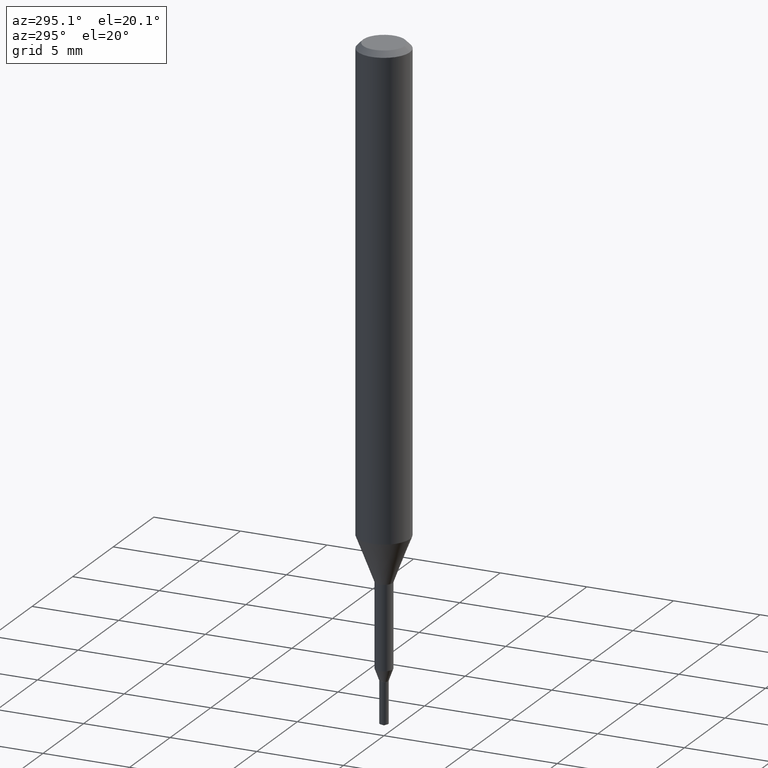
[diagram: clean part render]
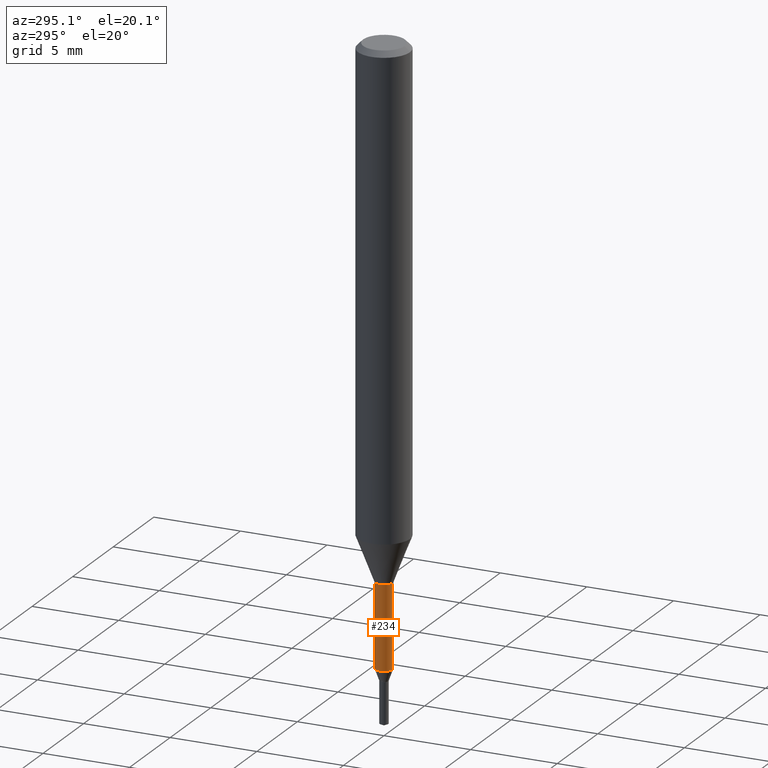
[diagram: same view with one face highlighted and labeled with its STEP entity id]
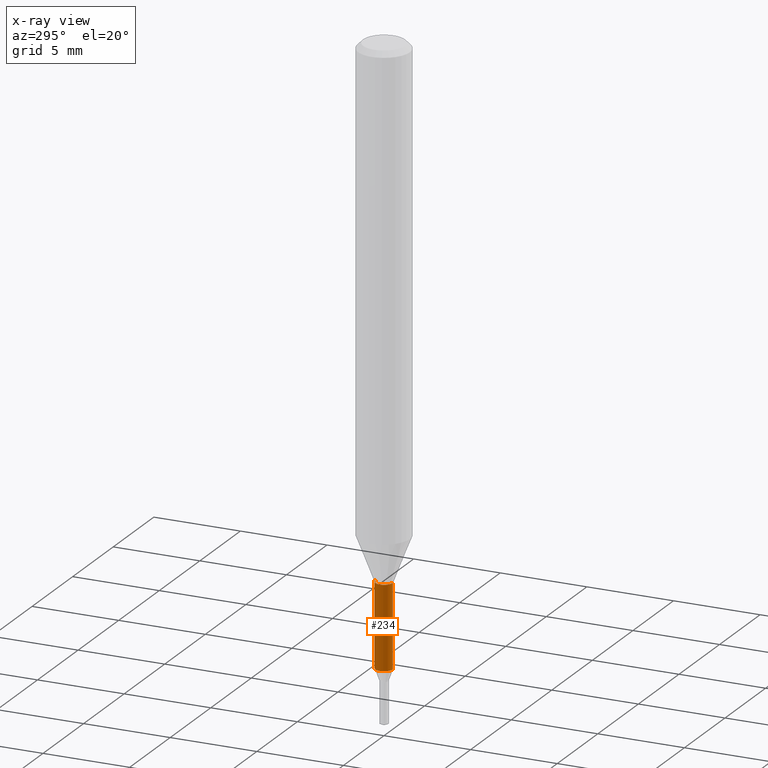
[diagram: x-ray of the same camera — body ghosted, the highlighted face saturated]
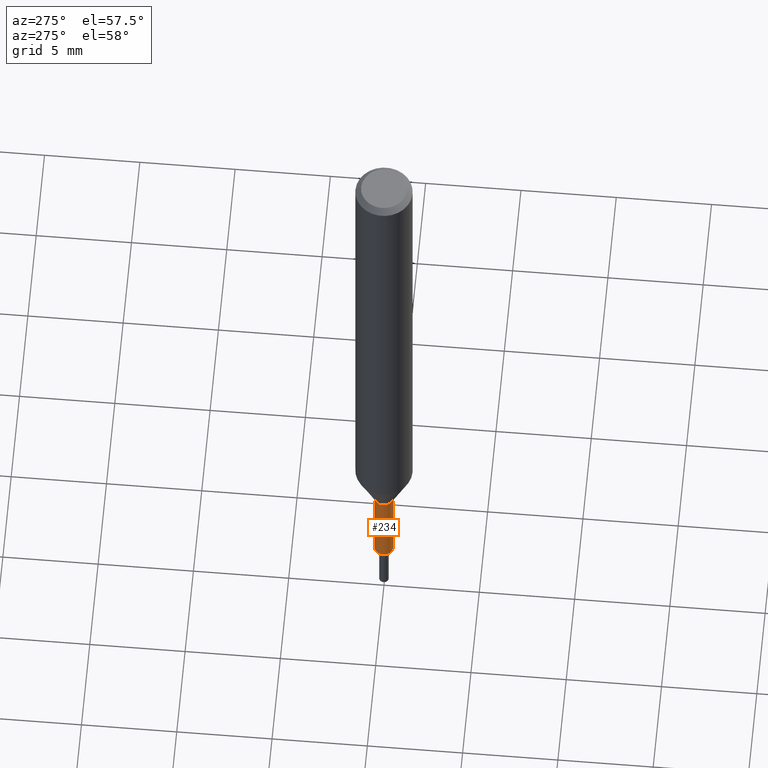
[diagram: same view with one face highlighted and labeled with its STEP entity id]
A machine part, auxiliary view. The second image highlights one B-rep face of the part: STEP entity #234.
The next image is the same camera in x-ray: the body ghosted, the highlighted face saturated — about 0% of this face is hidden behind the body in this view.
A second angle (auxiliary view) of the same face is appended — the face is thin or edge-on in the first view.
In plain terms, the highlighted cylindrical surface (edge-blend (fillet) strip) has radius 0.5 mm, axis along (-0, -0, 1).
Its self-contained STEP definition (entity closure, byte-faithful):
#116=EDGE_CURVE('',#132,#192,#293,.T.);
#132=VERTEX_POINT('',#311);
#134=EDGE_CURVE('',#216,#208,#313,.T.);
#166=EDGE_CURVE('',#208,#192,#350,.T.);
#192=VERTEX_POINT('',#377);
#208=VERTEX_POINT('',#395);
#216=VERTEX_POINT('',#405);
#224=EDGE_CURVE('',#132,#216,#413,.T.);
#234=ADVANCED_FACE('',(#423),#424,.T.);
#293=CIRCLE('',#485,0.49995);
#311=CARTESIAN_POINT('',(6.12241946593498E-017,-0.49995,-34.813));
#313=CIRCLE('',#507,0.49995);
#350=LINE('',#552,#553);
#377=CARTESIAN_POINT('',(0.0,0.49995,-34.813));
#395=CARTESIAN_POINT('',(0.0,0.49995,-30.0));
#405=CARTESIAN_POINT('',(6.12241946593498E-017,-0.49995,-30.0));
#413=LINE('',#640,#641);
#423=FACE_OUTER_BOUND('',#655,.T.);
#424=CYLINDRICAL_SURFACE('',#656,0.49995);
#485=AXIS2_PLACEMENT_3D('',#711,#712,#713);
#507=AXIS2_PLACEMENT_3D('',#735,#736,#737);
#552=CARTESIAN_POINT('',(-6.12241946593498E-017,0.49995,-32.4065));
#553=VECTOR('',#787,1.0);
#640=CARTESIAN_POINT('',(6.12241946593498E-017,-0.49995,-32.4065));
#641=VECTOR('',#852,1.0);
#655=EDGE_LOOP('',(#861,#862,#863,#864));
#656=AXIS2_PLACEMENT_3D('',#865,#866,#867);
#711=CARTESIAN_POINT('',(0.0,0.0,-34.813));
#712=DIRECTION('',(0.0,0.0,-1.0));
#713=DIRECTION('',(0.0,1.0,0.0));
#735=CARTESIAN_POINT('',(0.0,0.0,-30.0));
#736=DIRECTION('',(0.0,0.0,-1.0));
#737=DIRECTION('',(0.0,1.0,0.0));
#787=DIRECTION('',(0.0,0.0,-1.0));
#852=DIRECTION('',(-0.0,-0.0,1.0));
#861=ORIENTED_EDGE('',*,*,#166,.T.);
#862=ORIENTED_EDGE('',*,*,#116,.F.);
#863=ORIENTED_EDGE('',*,*,#224,.T.);
#864=ORIENTED_EDGE('',*,*,#134,.T.);
#865=CARTESIAN_POINT('',(0.0,0.0,-32.4065));
#866=DIRECTION('',(-0.0,-0.0,1.0));
#867=DIRECTION('',(0.0,1.0,0.0));